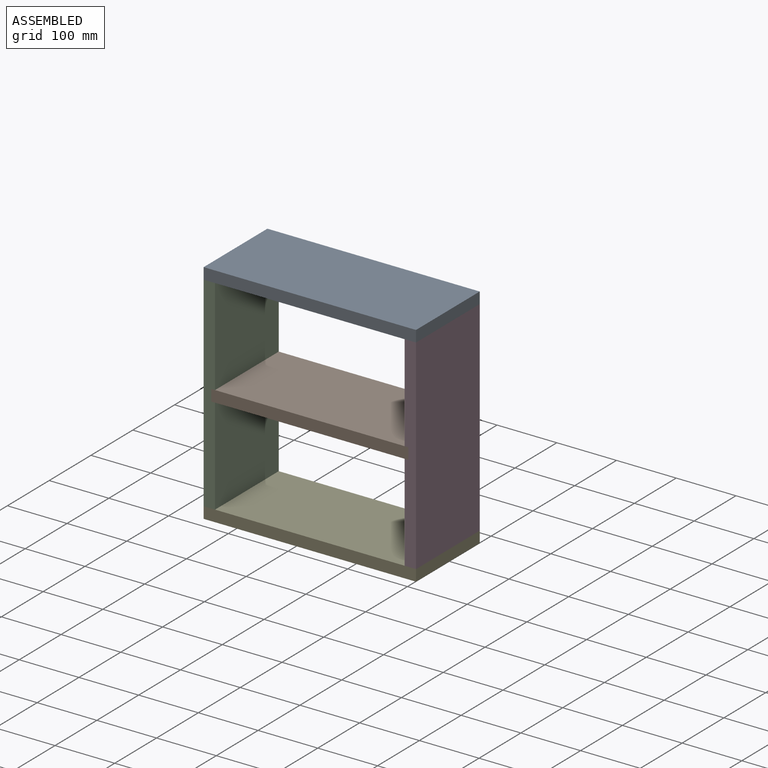
[diagram: assembled view]
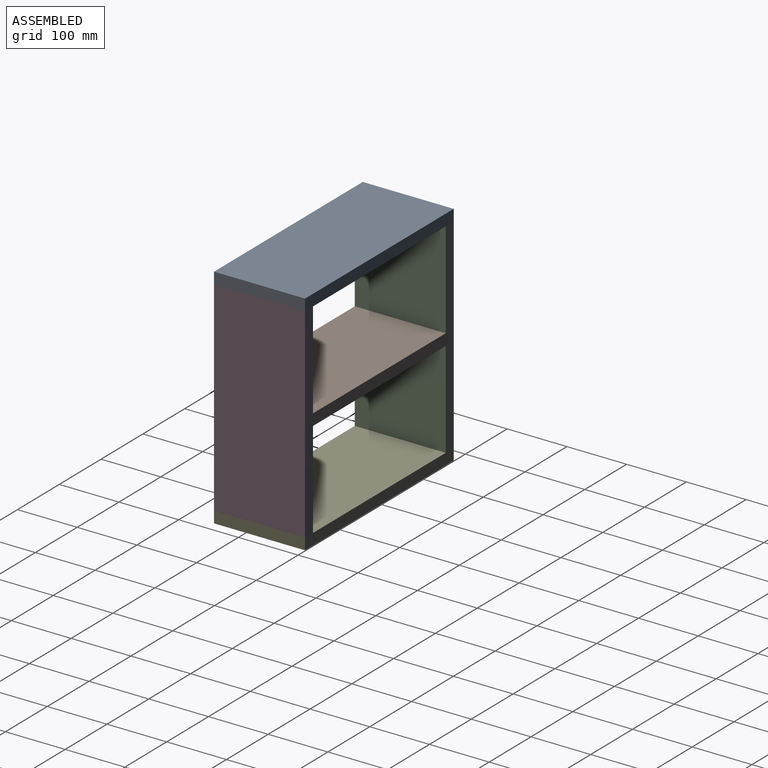
[diagram: assembled view, second angle]
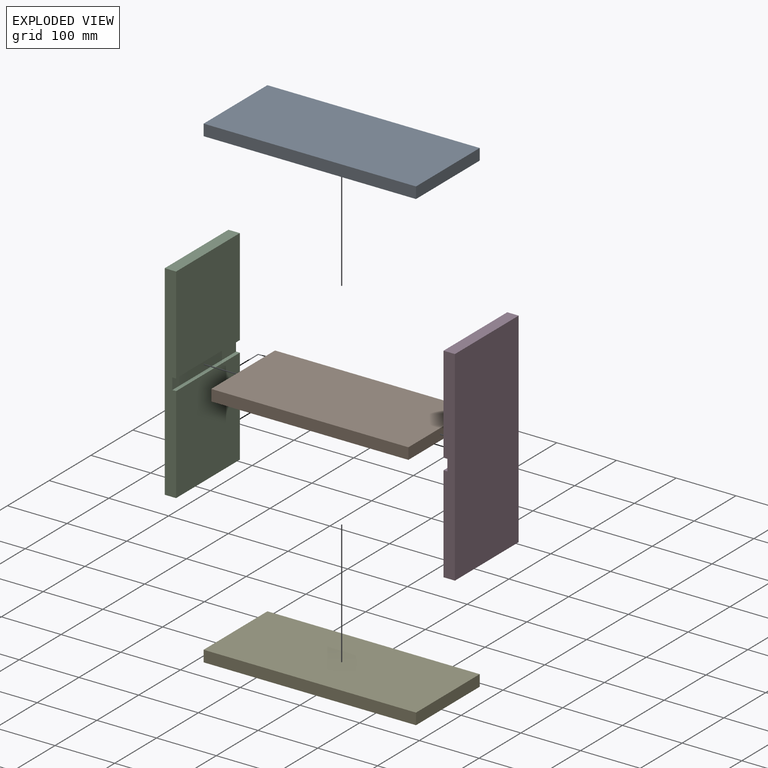
[diagram: exploded view]
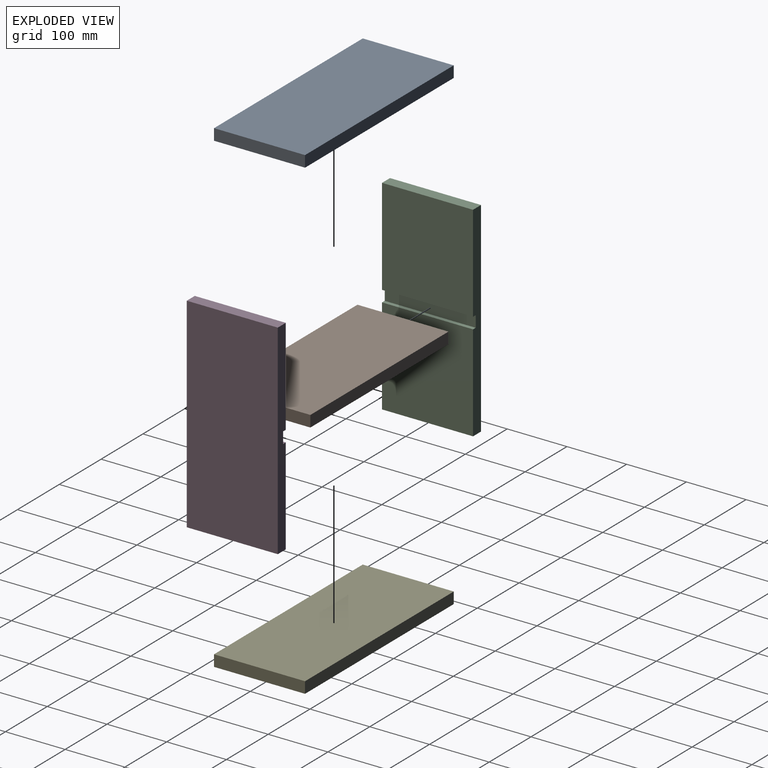
[diagram: exploded view, second angle]
ASSEMBLY  parts=5 mates=12
PART A: 6 faces, bbox 355.6x152.4x19.1 mm
  f0: plane 152.4x19.05mm, normal (1,0,0), area 2903.2mm2, adj f1,f3,f4,f5
  f1: plane 355.6x19.05mm, normal (0,1,0), area 6774.2mm2, adj f0,f2,f4,f5
  f2: plane 152.4x19.05mm, normal (-1,0,0), area 2903.2mm2, adj f1,f3,f4,f5
  f3: plane 355.6x19.05mm, normal (0,-1,0), area 6774.2mm2, adj f0,f2,f4,f5
  f4: plane 355.6x152.4mm, normal (0,0,1), area 54193.4mm2, adj f0,f1,f2,f3
  f5: plane 355.6x152.4mm, normal (0,0,-1), area 54193.4mm2, adj f0,f1,f2,f3
PART B: 6 faces, bbox 330.2x152.4x19.1 mm
  f0: plane 152.4x19.05mm, normal (1,0,0), area 2903.2mm2, adj f1,f3,f4,f5
  f1: plane 330.2x19.05mm, normal (0,1,0), area 6290.3mm2, adj f0,f2,f4,f5
  f2: plane 152.4x19.05mm, normal (-1,0,0), area 2903.2mm2, adj f1,f3,f4,f5
  f3: plane 330.2x19.05mm, normal (0,-1,0), area 6290.3mm2, adj f0,f2,f4,f5
  f4: plane 330.2x152.4mm, normal (0,0,1), area 50322.5mm2, adj f0,f1,f2,f3
  f5: plane 330.2x152.4mm, normal (0,0,-1), area 50322.5mm2, adj f0,f1,f2,f3
PART C: 10 faces, bbox 19.1x152.4x342.9 mm
  f0: plane 161.93x152.4mm, normal (-1,0,0), area 24677.4mm2, adj f1,f3,f4,f8
  f1: plane 342.9x19.05mm, normal (0,1,0), area 6411.3mm2, adj f0,f2,f4,f5,f6,f7,f8,f9
  f2: plane 152.4x19.05mm, normal (0,0,1), area 2903.2mm2, adj f1,f3,f5,f6
  f3: plane 342.9x19.05mm, normal (0,-1,0), area 6411.3mm2, adj f0,f2,f4,f5,f6,f7,f8,f9
  f4: plane 152.4x19.05mm, normal (0,0,-1), area 2903.2mm2, adj f0,f1,f3,f5
  f5: plane 342.9x152.4mm, normal (1,0,0), area 52258mm2, adj f1,f2,f3,f4
  f6: plane 161.93x152.4mm, normal (-1,0,0), area 24677.4mm2, adj f1,f2,f3,f7
  f7: plane 152.4x6.35mm, normal (0,0,-1), area 967.7mm2, adj f1,f3,f6,f9
  f8: plane 152.4x6.35mm, normal (0,0,1), area 967.7mm2, adj f0,f1,f3,f9
  f9: plane 152.4x19.05mm, normal (-1,0,0), area 2903.2mm2, adj f1,f3,f7,f8
PART D: same geometry as C
PART E: same geometry as A
PLACE A t=(0,0,361.95)mm
PLACE B t=(0,0,180.98)mm
PLACE C rot(axis=(0,0,1),180deg) t=(-158.75,0,190.5)mm
PLACE D t=(158.75,0,190.5)mm
PLACE E at identity fixed
MATE planar C.f5 <-> E.f2  axis (-1,0,0) through (-177.8,0,190.5)mm
MATE planar A.f3 <-> C.f1  axis (0,-1,0) through (-177.8,-76.2,381)mm
MATE planar E.f3 <-> C.f1  axis (0,-1,0) through (0,-76.2,9.53)mm
MATE planar B.f5 <-> D.f8  axis (0,0,-1) through (0,0,180.98)mm
MATE planar C.f4 <-> E.f4  axis (0,0,-1) through (-168.28,0,19.05)mm
MATE planar B.f0 <-> D.f9  axis (1,0,0) through (165.1,-76.2,200.02)mm
MATE planar D.f5 <-> E.f0  axis (1,0,0) through (177.8,0,190.5)mm
MATE planar B.f3 <-> D.f3  axis (0,-1,0) through (0,-76.2,190.5)mm
MATE planar D.f3 <-> E.f3  axis (0,-1,0) through (158.75,-76.2,100.01)mm
MATE planar E.f4 <-> D.f4  axis (0,0,1) through (177.8,-76.2,19.05)mm
MATE planar C.f2 <-> A.f5  axis (0,0,1) through (-168.28,0,361.95)mm
MATE planar A.f2 <-> C.f5  axis (-1,0,0) through (-177.8,0,371.48)mm
